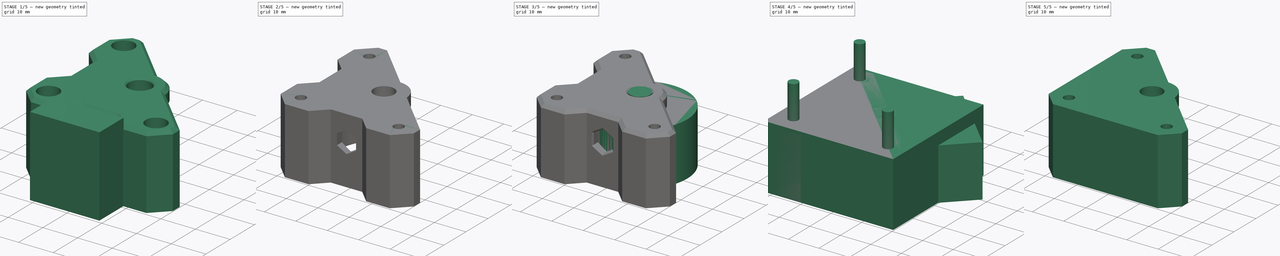
[diagram: build sequence overview — one tinted view per stage of 5, left to right]
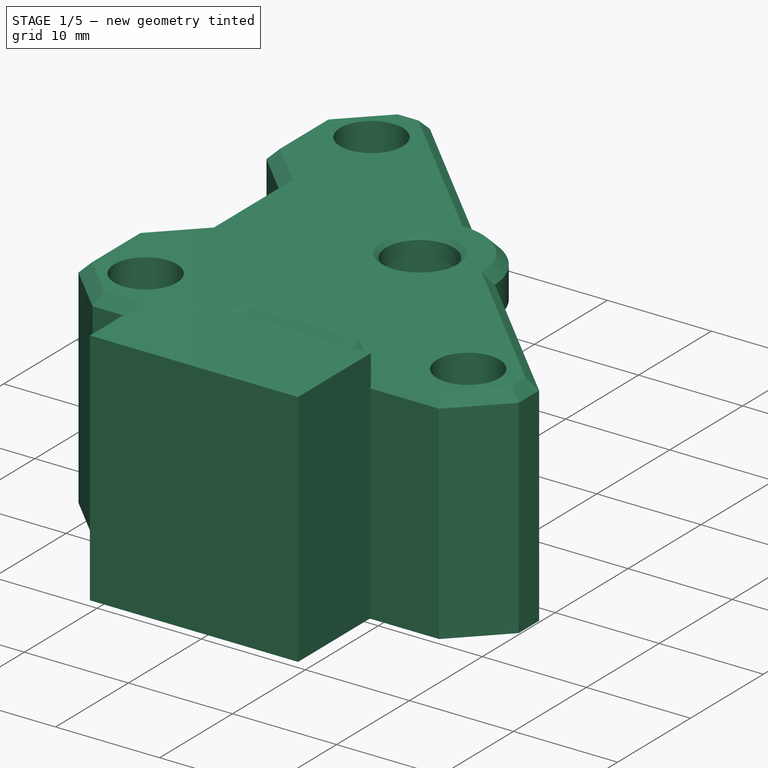
[diagram: stage 1 of 5 — iso view after this stage's code; geometry added in this stage tinted green]
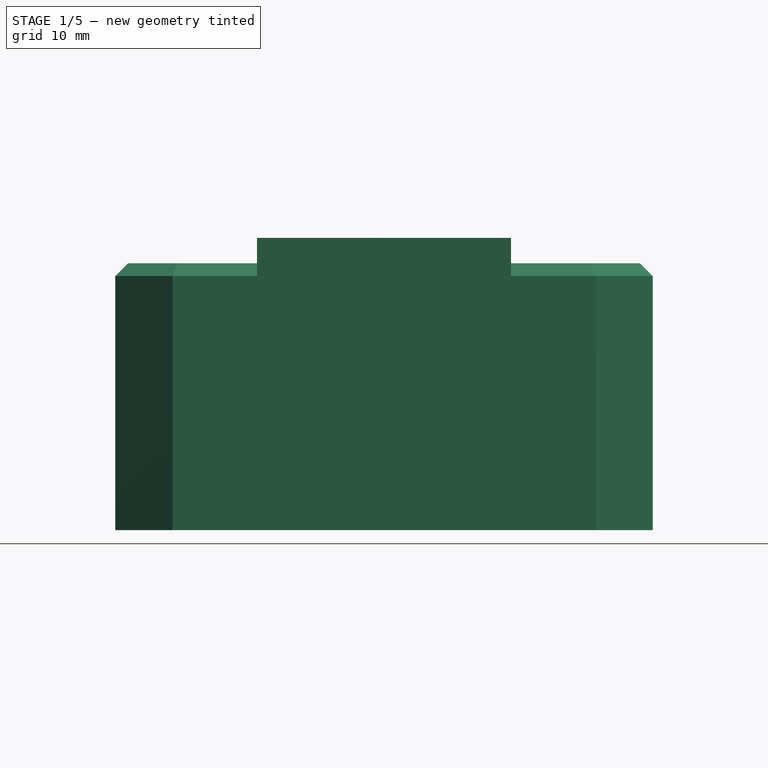
[diagram: stage 1 of 5 — front view after this stage's code; geometry added in this stage tinted green]
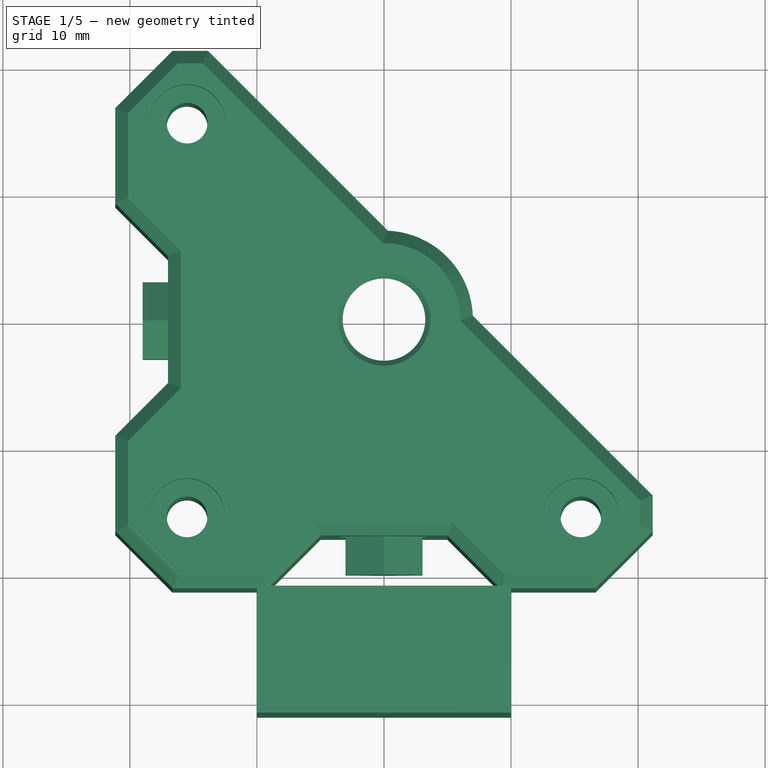
[diagram: stage 1 of 5 — top view after this stage's code; geometry added in this stage tinted green]
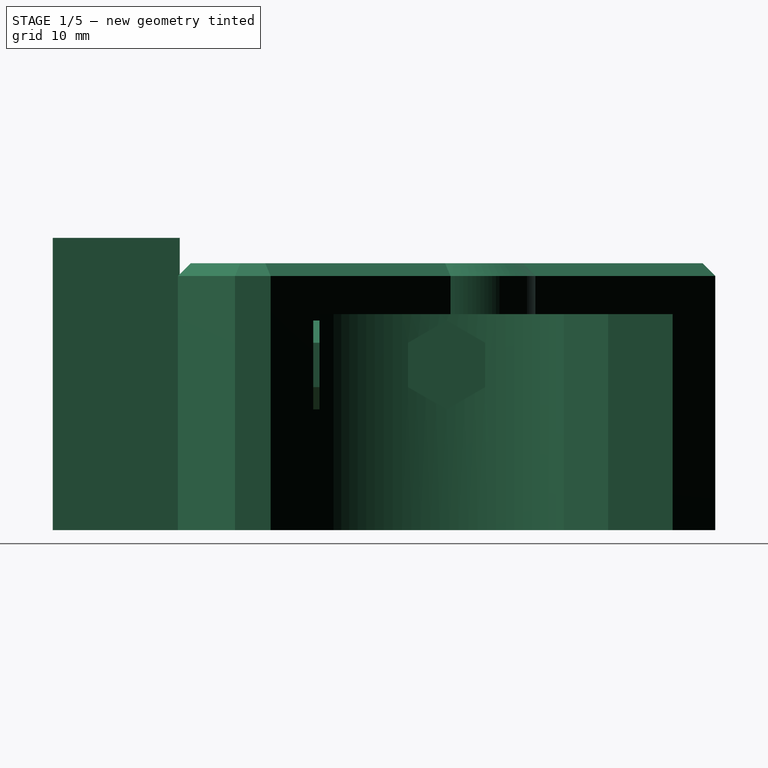
[diagram: stage 1 of 5 — right view after this stage's code; geometry added in this stage tinted green]
FCSTD DOCUMENT  (FreeCAD 0.18R16146 (Git))
Label: mini-z-belt-motor-cover
License: All rights reserved
LicenseURL: http://en.wikipedia.org/wiki/All_rights_reserved
objects: Part::Cylinder×10, Part::Chamfer×8, Part::MultiFuse×7, Part::Feature×6, Part::Cut×5, Part::Box×3, Sketcher::SketchObject×1, PartDesign::Pad×1, PartDesign::Body×1
note: 43 computed .brp shape members not serialized (recipe doc carries the construction recipe); baked Part::Feature solids carry a one-line shape summary decoded from their .brp

FEATURE [Part::Box] Box001003  label="Cube004"
  AttacherType = Attacher::AttachEngine3D
  Height = 23
  Length = 20
  Placement = pos=(-10,-31,0) rot=(0,0,1;0rad)
  Width = 10
FEATURE [PartDesign::Body] Body
  Group = -> [Sketch,Pad]
  Origin = -> Origin
  Tip = -> Pad
FEATURE [Part::Feature] Body001
  Placement = pos=(-9,0,13) rot=(0,-1,0;1.5708rad)
  shape: bbox 10 x 6.062 x 7 mm, 8 faces (baked)
FEATURE [Part::Feature] Body002
  Placement = pos=(3e-15,-10,13) rot=(0.57735,0.57735,-0.57735;2.0944rad)
  shape: bbox 6.062 x 10 x 7 mm, 8 faces (baked)
FEATURE [Part::MultiFuse] Fusion005
  Shapes = -> [Body002,Body001]
FEATURE [Part::Feature] Chamfer002006001  label="Chamfer002007"
  shape: bbox 42.3 x 42.3 x 21.52 mm, 75 faces (baked)
FEATURE [Part::Cylinder] Cylinder007
  Angle = 360
  AttacherType = Attacher::AttachEngine3D
  Height = 10
  Placement = pos=(-15.5,15.5,19) rot=(0,0,1;0rad)
  Radius = 3
FEATURE [Part::Cylinder] Cylinder008
  Angle = 360
  AttacherType = Attacher::AttachEngine3D
  Height = 10
  Placement = pos=(15.5,-15.5,19) rot=(0,0,1;0rad)
  Radius = 3
FEATURE [Part::Cylinder] Cylinder009
  Angle = 360
  AttacherType = Attacher::AttachEngine3D
  Height = 10
  Placement = pos=(-15.5,-15.5,19) rot=(0,0,1;0rad)
  Radius = 3
FEATURE [Part::MultiFuse] Fusion006
  Placement = pos=(0,0,-1) rot=(0,0,1;0rad)
  Shapes = -> [Cylinder009,Cylinder008,Cylinder007]
FEATURE [Part::Cut] Cut002003
  Base = -> Chamfer002006001
  Tool = -> Fusion006
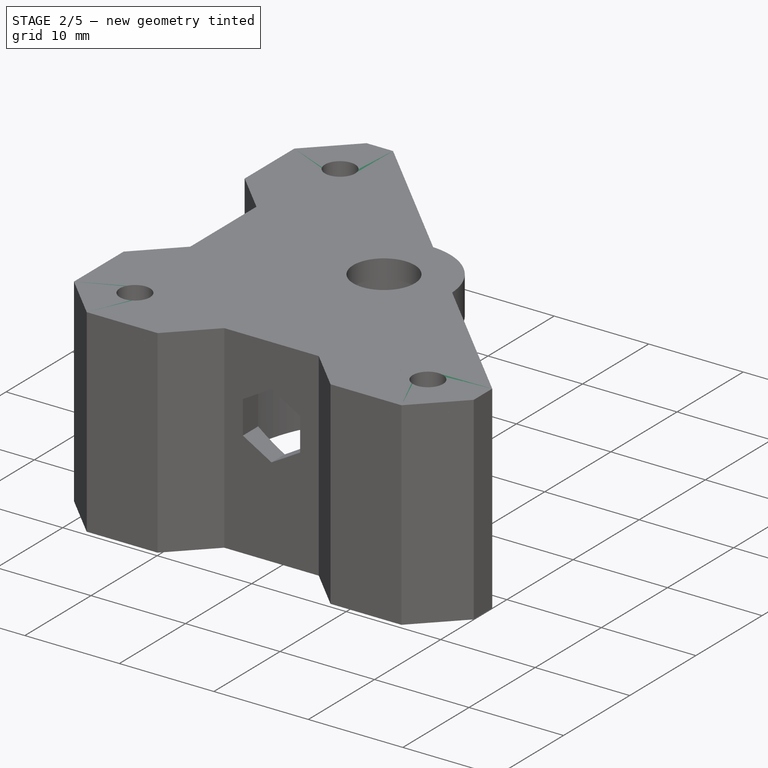
[diagram: stage 2 of 5 — iso view after this stage's code; geometry added in this stage tinted green]
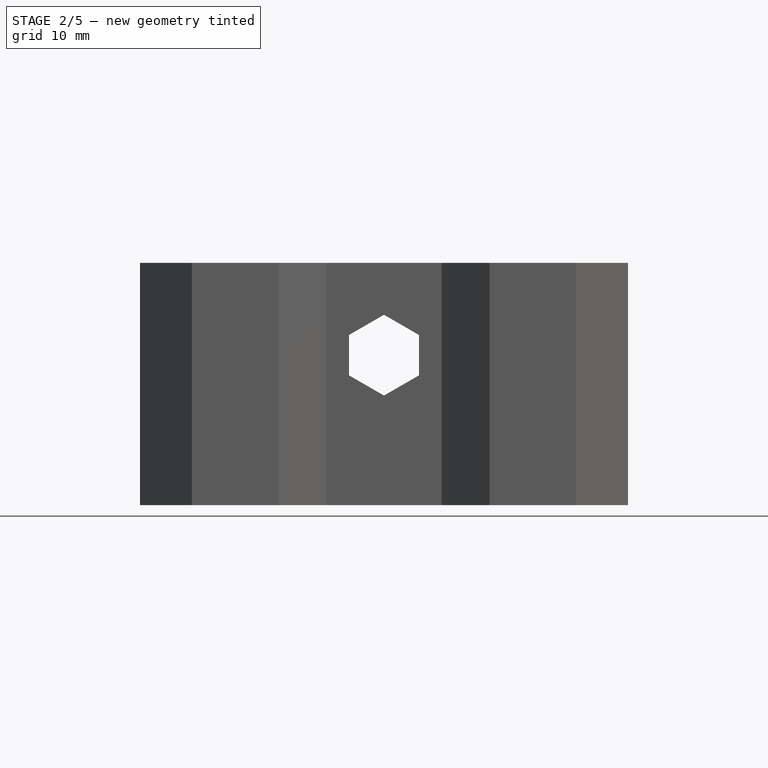
[diagram: stage 2 of 5 — front view after this stage's code; geometry added in this stage tinted green]
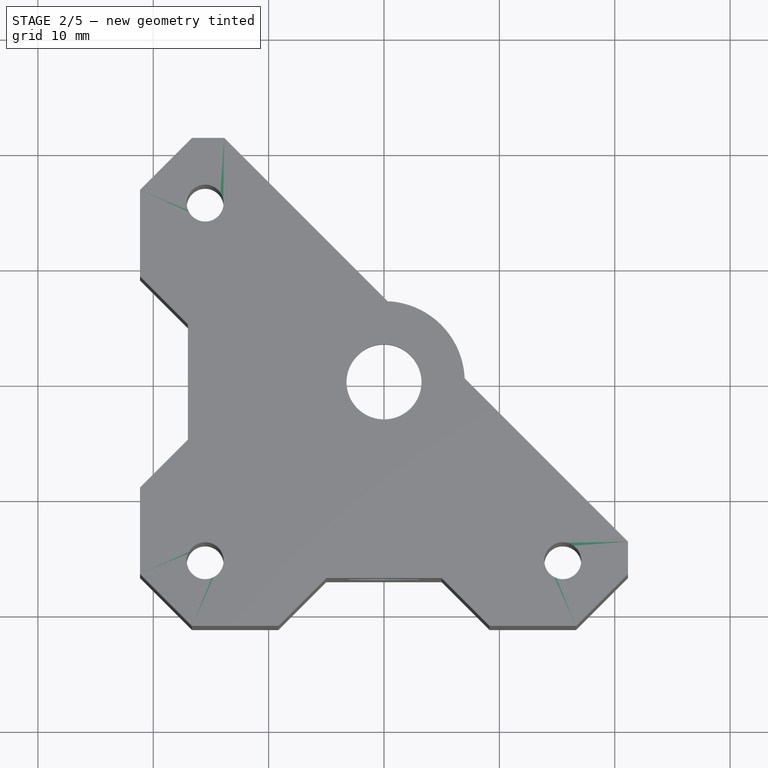
[diagram: stage 2 of 5 — top view after this stage's code; geometry added in this stage tinted green]
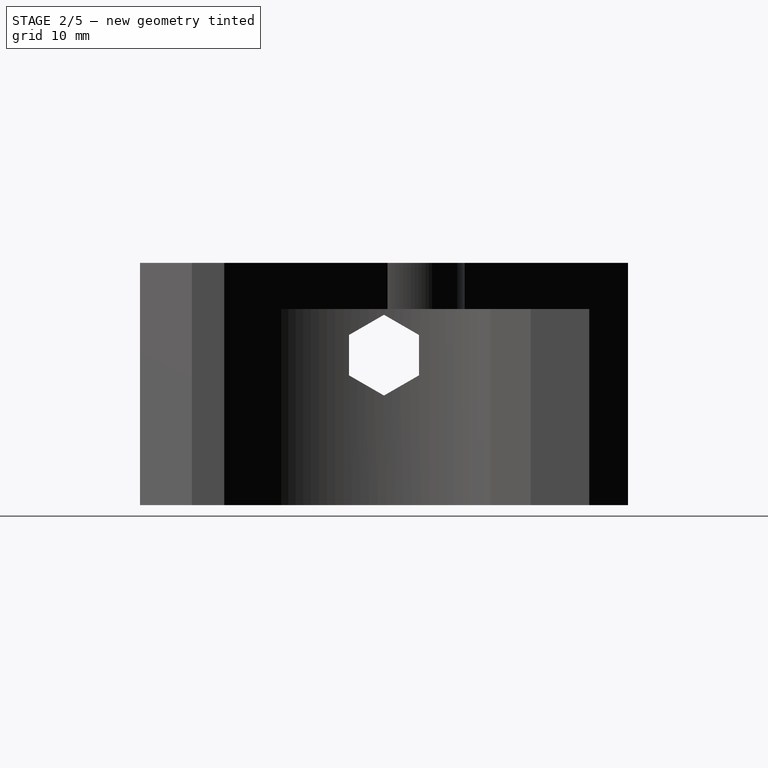
[diagram: stage 2 of 5 — right view after this stage's code; geometry added in this stage tinted green]
FEATURE [Part::Feature] Chamfer002001  label="Chamfer003"
  shape: bbox 42.3 x 42.3 x 21 mm, 24 faces (baked)
FEATURE [Part::Chamfer] Chamfer002002
  Base = -> Chamfer002001
  Edges = 2 edges r=2: [Edge24,Edge39]
FEATURE [Part::Box] Box001002  label="Cube003"
  AttacherType = Attacher::AttachEngine3D
  Height = 23
  Length = 10
  Placement = pos=(-31,-10,0) rot=(0,0,1;0rad)
  Width = 20
FEATURE [Part::Chamfer] Chamfer002003
  Base = -> Box001002
  Edges = 2 edges r=5: [Edge5,Edge7]
  Placement = pos=(4,0,0) rot=(0,0,1;0rad)
FEATURE [Part::Chamfer] Chamfer002004
  Base = -> Box001003
  Edges = 2 edges r=5: [Edge3,Edge7]
  Placement = pos=(0,4,0) rot=(0,0,1;0rad)
FEATURE [Part::MultiFuse] Fusion004
  Shapes = -> [Chamfer002004,Chamfer002003]
FEATURE [Part::Cut] Cut002
  Base = -> Chamfer002002
  Tool = -> Fusion004
FEATURE [Part::Cut] Cut002002
  Base = -> Cut002
  Tool = -> Fusion005
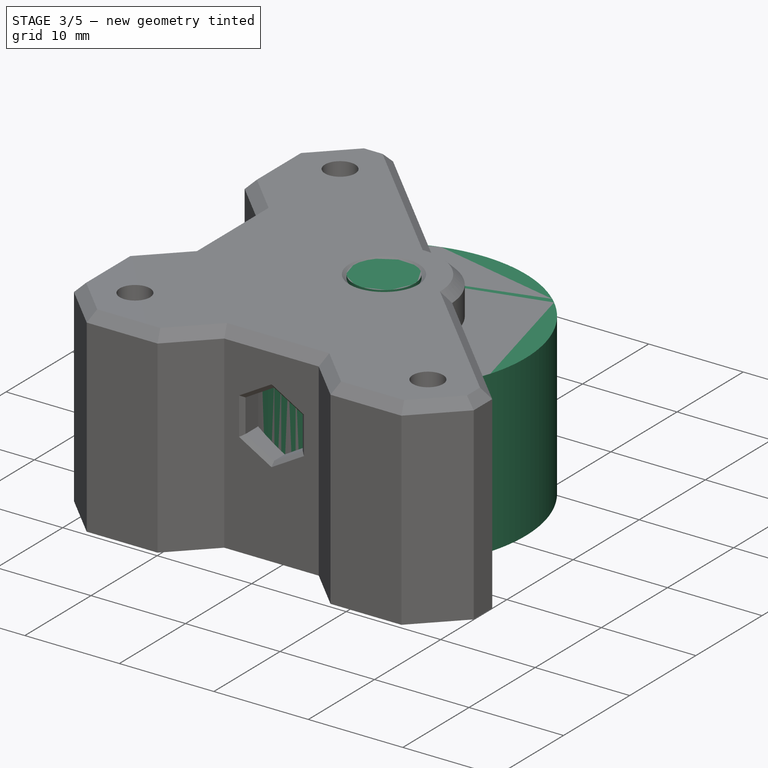
[diagram: stage 3 of 5 — iso view after this stage's code; geometry added in this stage tinted green]
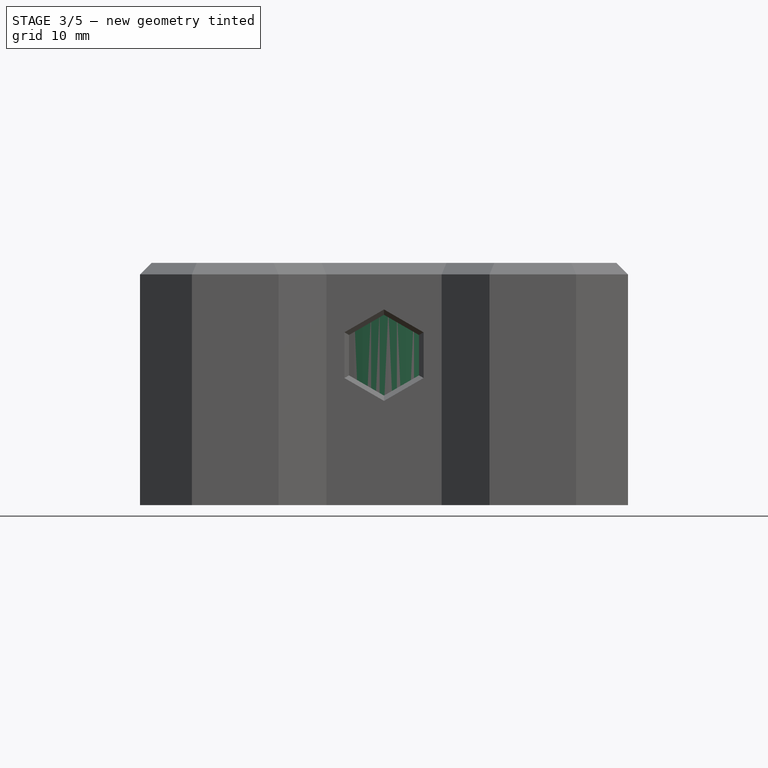
[diagram: stage 3 of 5 — front view after this stage's code; geometry added in this stage tinted green]
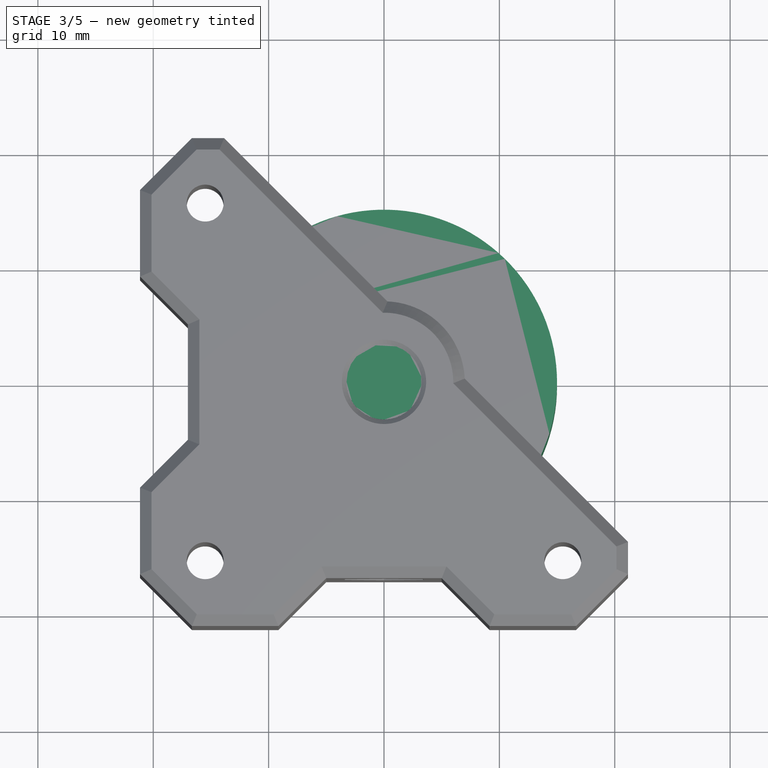
[diagram: stage 3 of 5 — top view after this stage's code; geometry added in this stage tinted green]
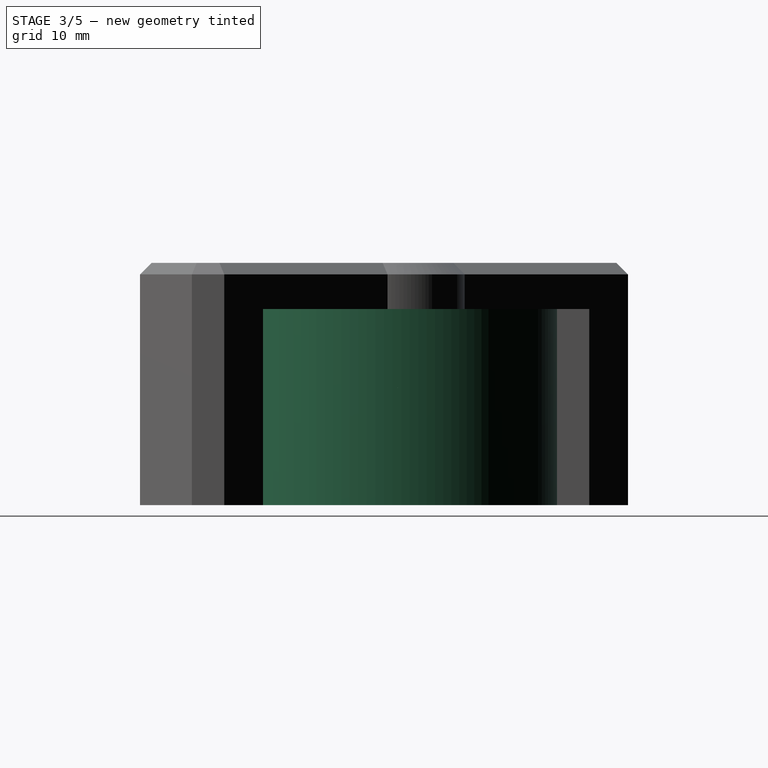
[diagram: stage 3 of 5 — right view after this stage's code; geometry added in this stage tinted green]
FEATURE [Part::Cylinder] Cylinder004
  Angle = 360
  AttacherType = Attacher::AttachEngine3D
  Height = 17
  Radius = 15
FEATURE [Part::Cylinder] Cylinder005
  Angle = 360
  AttacherType = Attacher::AttachEngine3D
  Height = 19
  Radius = 4.1
FEATURE [Part::Cylinder] Cylinder006
  Angle = 360
  AttacherType = Attacher::AttachEngine3D
  Height = 21
  Radius = 3.25
FEATURE [Part::Feature] Cut002001  label="16-teeth-pulley"
  Placement = pos=(7e-15,-0.15,16.15) rot=(0.707107,0.707107,0;3.14159rad)
  shape: bbox 14 x 14 x 15.5 mm, 10 faces (baked)
FEATURE [Sketcher::SketchObject] Sketch
  MapMode = 5
  Support = -> [XY_Plane]
  sketch-geometry (7):
    g0: LineSegment StartX=3.5 StartY=0 StartZ=0 EndX=1.75 EndY=3.03109 EndZ=0
    g1: LineSegment StartX=1.75 StartY=3.03109 StartZ=0 EndX=-1.75 EndY=3.03109 EndZ=0
    g2: LineSegment StartX=-1.75 StartY=3.03109 StartZ=0 EndX=-3.5 EndY=4e-16 EndZ=0
    g3: LineSegment StartX=-3.5 StartY=4e-16 StartZ=0 EndX=-1.75 EndY=-3.03109 EndZ=0
    g4: LineSegment StartX=-1.75 StartY=-3.03109 StartZ=0 EndX=1.75 EndY=-3.03109 EndZ=0
    g5: LineSegment StartX=1.75 StartY=-3.03109 StartZ=0 EndX=3.5 EndY=0 EndZ=0
    g6: Circle [constr] CenterX=0 CenterY=0 CenterZ=0 NormalX=0 NormalY=0 NormalZ=1 AngleXU=0 Radius=3.5
  constraints (13):
    c: Coincident(g0,g1)
    c: Coincident(g1,g2)
    c: Coincident(g2,g3)
    c: Coincident(g3,g4)
    c: Coincident(g4,g5)
    c: Coincident(g5,g0)
    c: Equal(g0, g1-g5) x5
    c: PointOnObject(g0,g6)
    c: PointOnObject(g1,g6)
    c: PointOnObject(g2,g6)
    c: PointOnObject(g3,g6)
    c: PointOnObject(g4,g6)
    c: PointOnObject(g5,g6)
FEATURE [PartDesign::Pad] Pad
  Length = 10
  Length2 = 100
  Profile = -> Sketch
  Type = 0
FEATURE [Part::Chamfer] Chamfer002005
  Base = -> Cut002002
  Edges = 18 edges r=1: [Edge49,Edge51,Edge54,Edge55,Edge58,Edge60,Edge67,Edge69,Edge72,Edge73,Edge75,Edge77,Edge86,Edge87,Edge90,Edge92,Edge94,Edge120]
FEATURE [Part::Chamfer] Chamfer002006
  Base = -> Chamfer002005
  Edges = 13 edges r=0.4: [Edge70,Edge95,Edge96,Edge97,Edge98,Edge99,Edge100,Edge113,Edge114,Edge115,Edge116,Edge117,Edge118]
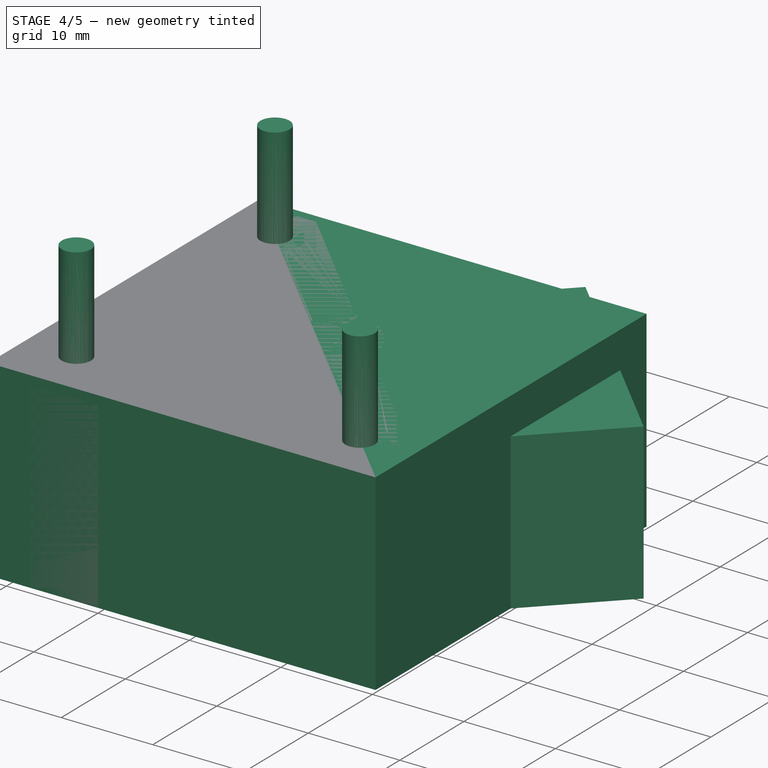
[diagram: stage 4 of 5 — iso view after this stage's code; geometry added in this stage tinted green]
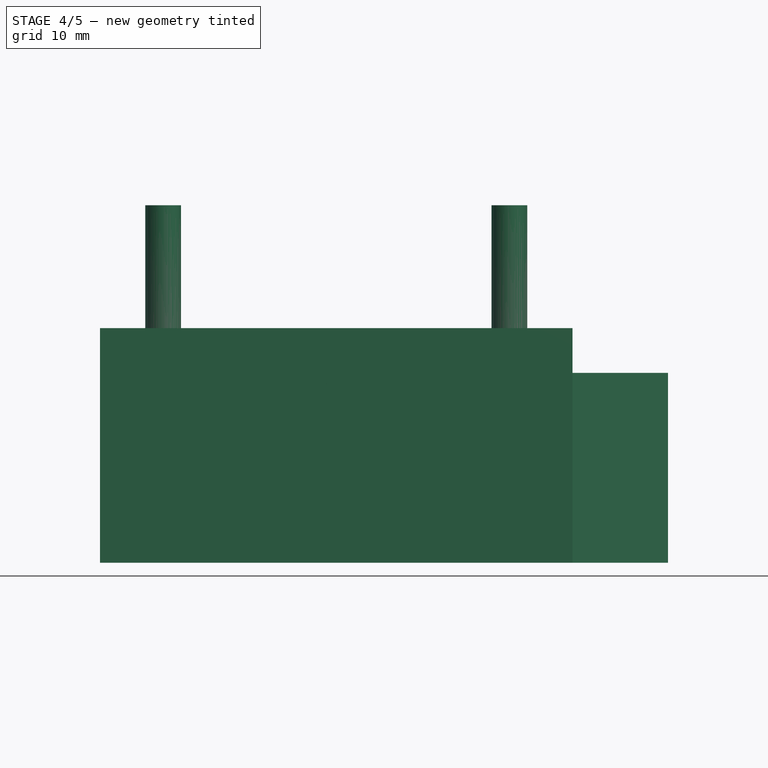
[diagram: stage 4 of 5 — front view after this stage's code; geometry added in this stage tinted green]
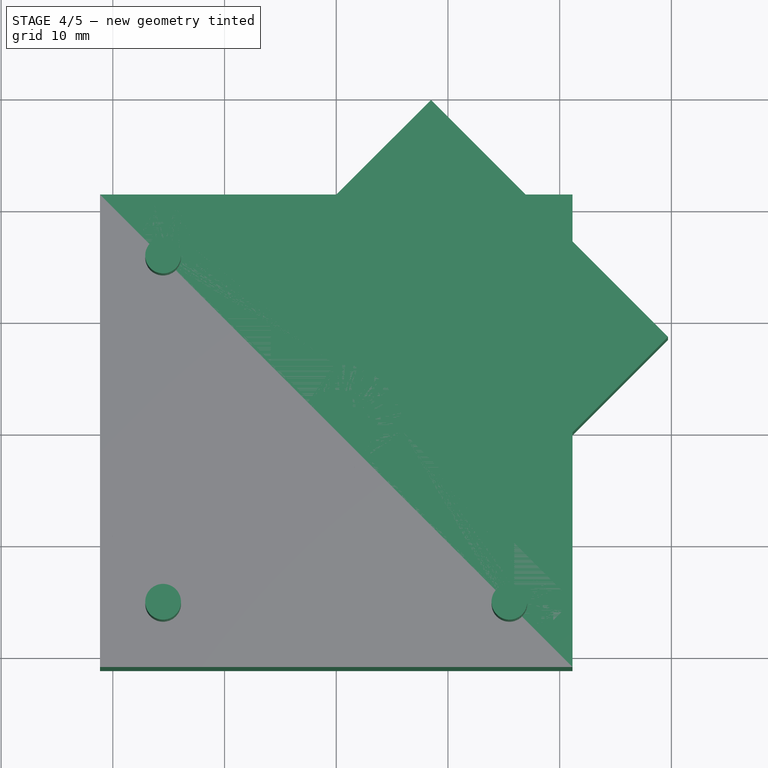
[diagram: stage 4 of 5 — top view after this stage's code; geometry added in this stage tinted green]
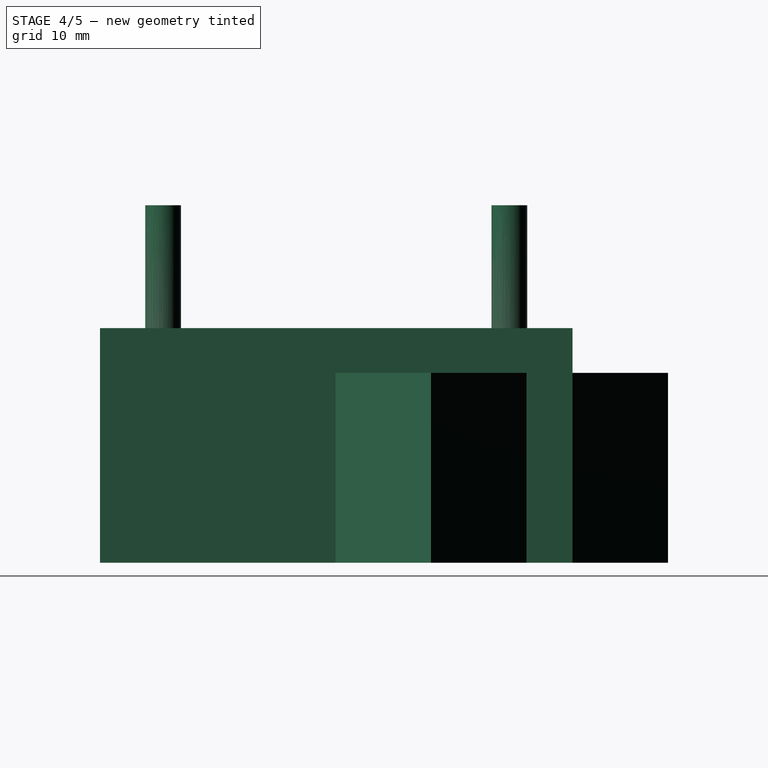
[diagram: stage 4 of 5 — right view after this stage's code; geometry added in this stage tinted green]
FEATURE [Part::Box] Box  label="Cube"
  AttacherType = Attacher::AttachEngine3D
  Height = 21
  Length = 42.3
  Placement = pos=(-21.15,-21.15,0) rot=(0,0,1;0rad)
  Width = 42.3
FEATURE [Part::Cylinder] Cylinder001
  Angle = 360
  AttacherType = Attacher::AttachEngine3D
  Height = 32
  Placement = pos=(-15.5,15.5,0) rot=(0,0,1;0rad)
  Radius = 1.6
FEATURE [Part::Cylinder] Cylinder002
  Angle = 360
  AttacherType = Attacher::AttachEngine3D
  Height = 32
  Placement = pos=(-15.5,-15.5,0) rot=(0,0,1;0rad)
  Radius = 1.6
FEATURE [Part::Cylinder] Cylinder003
  Angle = 360
  AttacherType = Attacher::AttachEngine3D
  Height = 32
  Placement = pos=(15.5,-15.5,0) rot=(0,0,1;0rad)
  Radius = 1.6
FEATURE [Part::MultiFuse] Fusion
  Shapes = -> [Cylinder003,Cylinder002,Cylinder001]
FEATURE [Part::MultiFuse] Fusion002
  Shapes = -> [Cylinder004,Cylinder006,Cylinder005]
FEATURE [Part::Feature] Box001001  label="Cube002"
  Placement = pos=(0,0,0) rot=(0,0,-1;0.785398rad)
  shape: bbox 40.31 x 40.31 x 17 mm, 6 faces (baked)
FEATURE [Part::MultiFuse] Fusion003
  Shapes = -> [Box001001,Fusion002]
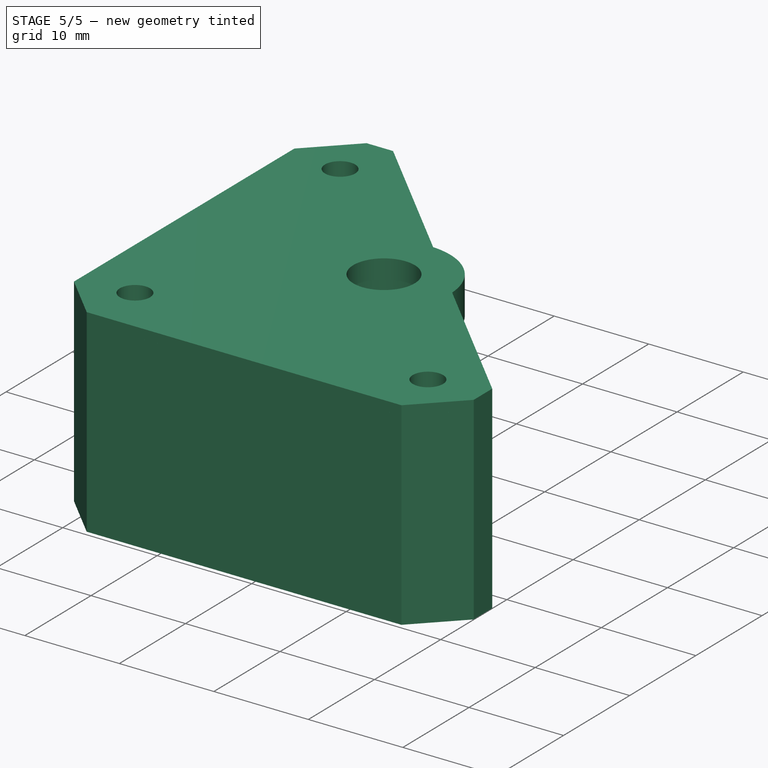
[diagram: stage 5 of 5 — iso view after this stage's code; geometry added in this stage tinted green]
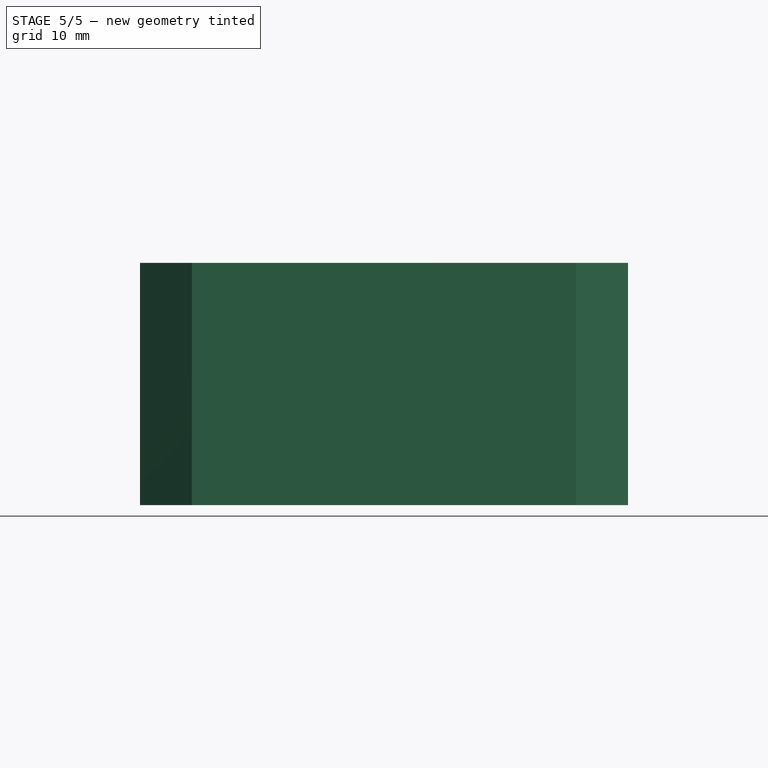
[diagram: stage 5 of 5 — front view after this stage's code; geometry added in this stage tinted green]
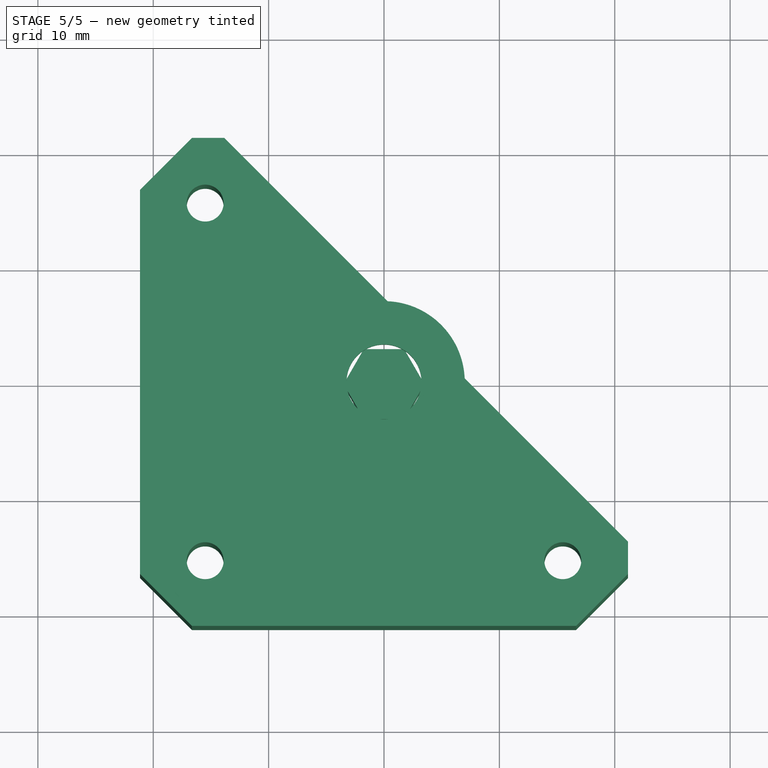
[diagram: stage 5 of 5 — top view after this stage's code; geometry added in this stage tinted green]
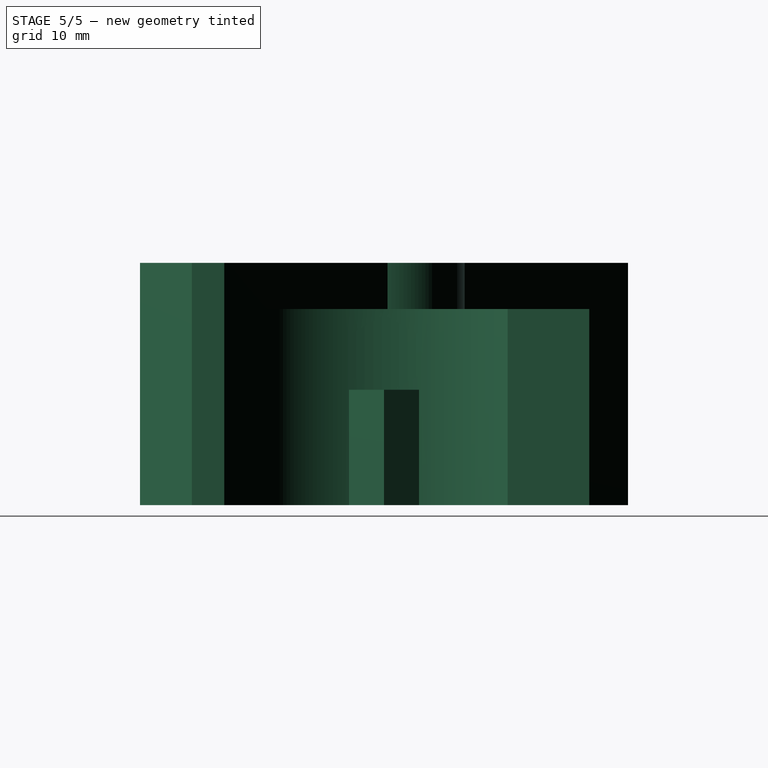
[diagram: stage 5 of 5 — right view after this stage's code; geometry added in this stage tinted green]
FEATURE [Part::Cylinder] Cylinder
  Angle = 360
  AttacherType = Attacher::AttachEngine3D
  Height = 21
  Radius = 7
FEATURE [Part::Chamfer] Chamfer
  Base = -> Box
  Edges = 3 edges r=4.5: [Edge1,Edge3,Edge5]
FEATURE [Part::Cut] Cut
  Base = -> Chamfer
  Tool = -> Fusion
FEATURE [Part::Chamfer] Chamfer001
  Base = -> Cut
  Edges = 1 edges r=35: [Edge26]
FEATURE [Part::MultiFuse] Fusion001
  Shapes = -> [Cylinder,Chamfer001]
FEATURE [Part::Cut] Cut001
  Base = -> Fusion001
  Tool = -> Fusion003
FEATURE [Part::Chamfer] Chamfer002
  Base = -> Cut001
  Edges = 2 edges r=5: [Edge7,Edge20]
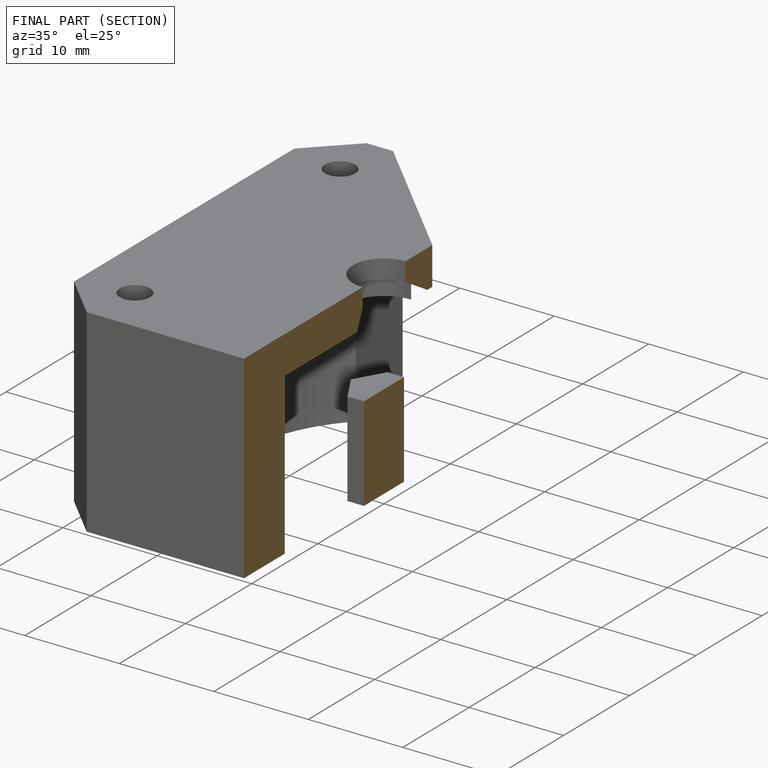
[diagram: finished part — half-section view (interior)]
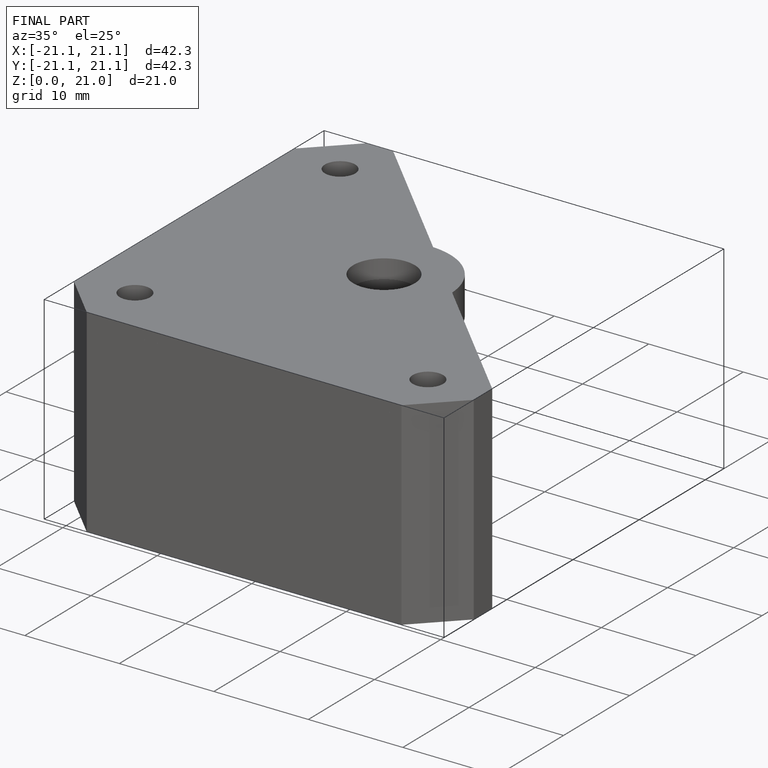
[diagram: finished part — iso view with bounding-box wireframe]
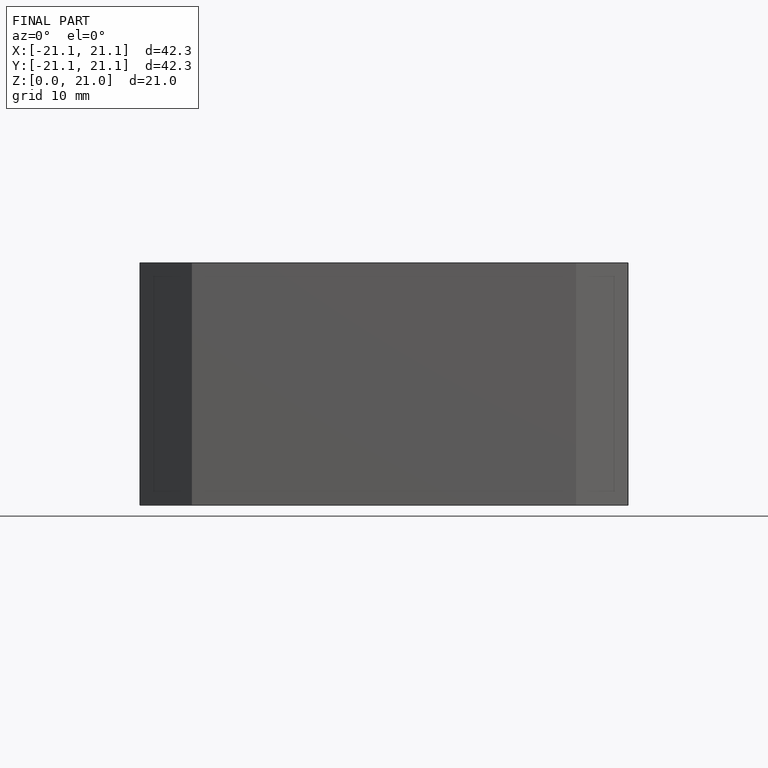
[diagram: finished part — front view with bounding-box wireframe]
